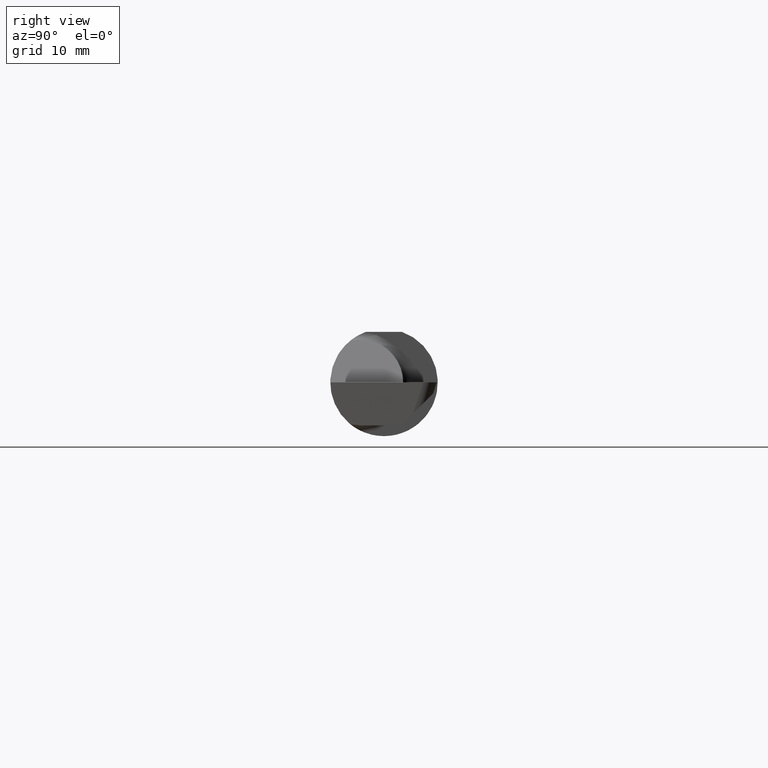
[diagram: clean part render]
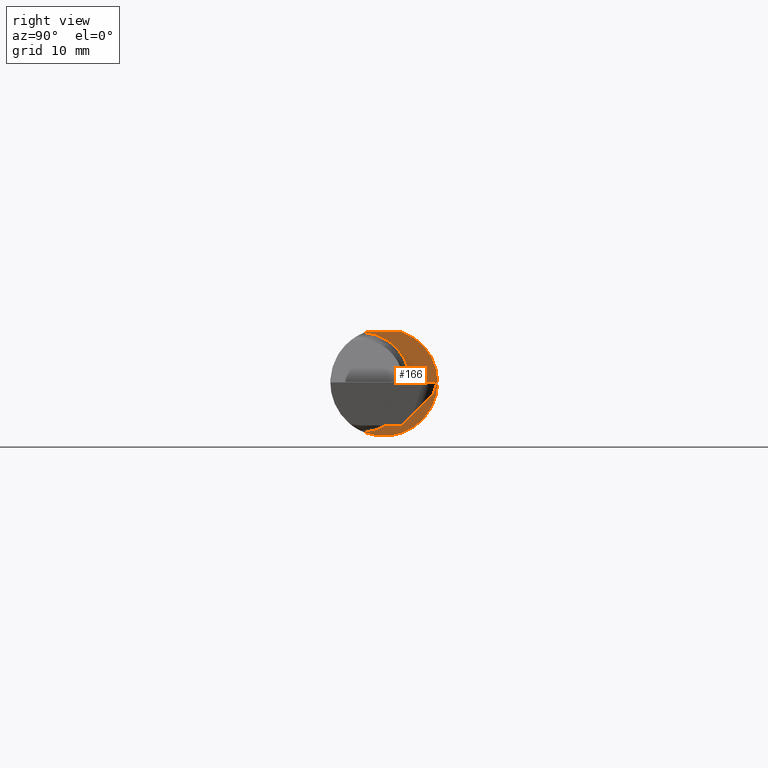
[diagram: same view with one face highlighted and labeled with its STEP entity id]
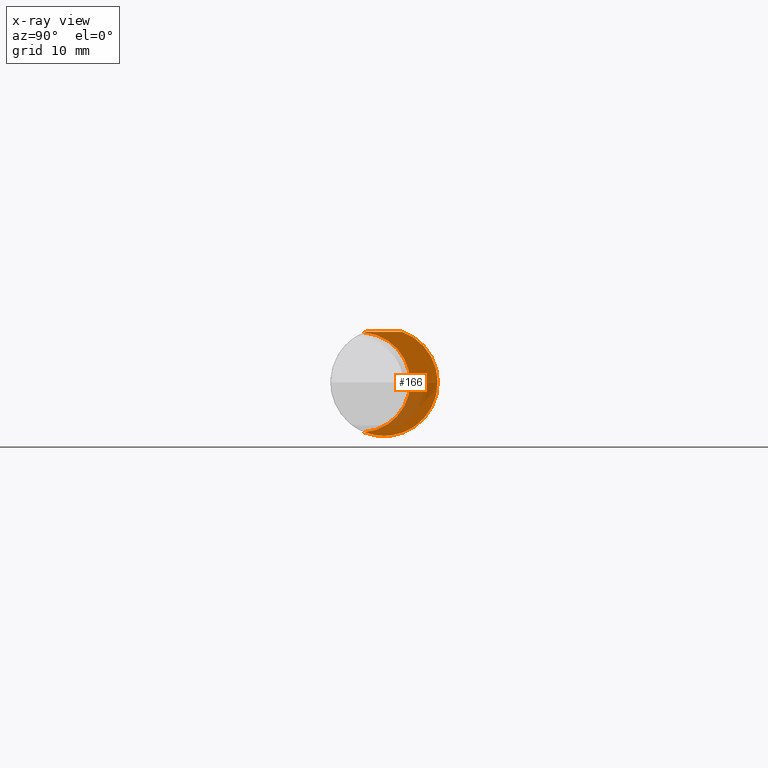
[diagram: x-ray of the same camera — body ghosted, the highlighted face saturated]
A machine part, right view. The second image highlights one B-rep face of the part: STEP entity #166.
The next image is the same camera in x-ray: the body ghosted, the highlighted face saturated — about 28% of this face is hidden behind the body in this view.
In plain terms, the highlighted planar face has unit normal (1, 0, 0).
Its self-contained STEP definition (entity closure, byte-faithful):
#3 = CARTESIAN_POINT ( 'NONE',  ( 2.075000000000000178, 0.000000000000000000, 0.000000000000000000 ) ) ;
#24 = CARTESIAN_POINT ( 'NONE',  ( 2.075000000000000178, 0.1873499999999999055, 0.000000000000000000 ) ) ;
#31 = CARTESIAN_POINT ( 'NONE',  ( 2.075000000000000178, -0.06851976604679065053, -0.1743704796142198643 ) ) ;
#53 = ORIENTED_EDGE ( 'NONE', *, *, #465, .T. ) ;
#81 = AXIS2_PLACEMENT_3D ( 'NONE', #3, #348, #301 ) ;
#116 = CARTESIAN_POINT ( 'NONE',  ( 2.075000000000000178, 0.000000000000000000, 0.000000000000000000 ) ) ;
#136 = ORIENTED_EDGE ( 'NONE', *, *, #144, .T. ) ;
#144 = EDGE_CURVE ( 'NONE', #157, #246, #382, .T. ) ;
#157 = VERTEX_POINT ( 'NONE', #327 ) ;
#166 = ADVANCED_FACE ( 'NONE', ( #184 ), #627, .T. ) ;
#184 = FACE_OUTER_BOUND ( 'NONE', #267, .T. ) ;
#189 = VERTEX_POINT ( 'NONE', #242 ) ;
#210 = VERTEX_POINT ( 'NONE', #570 ) ;
#223 = AXIS2_PLACEMENT_3D ( 'NONE', #116, #500, #670 ) ;
#234 = AXIS2_PLACEMENT_3D ( 'NONE', #385, #437, #605 ) ;
#242 = CARTESIAN_POINT ( 'NONE',  ( 2.075000000000000178, -0.06325108694718283020, 0.1763499999999999235 ) ) ;
#246 = VERTEX_POINT ( 'NONE', #31 ) ;
#267 = EDGE_LOOP ( 'NONE', ( #53, #344, #425, #136 ) ) ;
#273 = EDGE_CURVE ( 'NONE', #189, #210, #282, .T. ) ;
#278 = CIRCLE ( 'NONE', #81, 0.1873499999999999888 ) ;
#282 = LINE ( 'NONE', #501, #336 ) ;
#301 = DIRECTION ( 'NONE',  ( 0.000000000000000000, 1.000000000000000000, 0.000000000000000000 ) ) ;
#327 = CARTESIAN_POINT ( 'NONE',  ( 2.075000000000000178, -0.06851976604679065053, 0.1743704796142198643 ) ) ;
#336 = VECTOR ( 'NONE', #446, 39.37007874015748143 ) ;
#344 = ORIENTED_EDGE ( 'NONE', *, *, #273, .F. ) ;
#348 = DIRECTION ( 'NONE',  ( 1.000000000000000000, 5.069406624455083742E-17, 0.000000000000000000 ) ) ;
#382 = CIRCLE ( 'NONE', #234, 0.1749999999999999889 ) ;
#385 = CARTESIAN_POINT ( 'NONE',  ( 2.075000000000000178, -0.08334999999999999354, 0.000000000000000000 ) ) ;
#399 = DIRECTION ( 'NONE',  ( 1.000000000000000000, 5.069406624455083742E-17, 0.000000000000000000 ) ) ;
#425 = ORIENTED_EDGE ( 'NONE', *, *, #561, .T. ) ;
#437 = DIRECTION ( 'NONE',  ( -1.000000000000000000, -5.069406624455083742E-17, -0.000000000000000000 ) ) ;
#446 = DIRECTION ( 'NONE',  ( -5.069406624455083742E-17, 1.000000000000000000, 0.000000000000000000 ) ) ;
#465 = EDGE_CURVE ( 'NONE', #246, #210, #663, .T. ) ;
#500 = DIRECTION ( 'NONE',  ( 1.000000000000000000, 5.069406624455083742E-17, 0.000000000000000000 ) ) ;
#501 = CARTESIAN_POINT ( 'NONE',  ( 2.075000000000000178, 0.1873499999999998222, 0.1763499999999999235 ) ) ;
#561 = EDGE_CURVE ( 'NONE', #189, #157, #278, .T. ) ;
#570 = CARTESIAN_POINT ( 'NONE',  ( 2.075000000000000178, 0.06325108694718235836, 0.1763499999999999235 ) ) ;
#605 = DIRECTION ( 'NONE',  ( 0.000000000000000000, -1.000000000000000000, 0.000000000000000000 ) ) ;
#616 = DIRECTION ( 'NONE',  ( -5.069406624455083742E-17, 1.000000000000000000, 0.000000000000000000 ) ) ;
#627 = PLANE ( 'NONE',  #640 ) ;
#640 = AXIS2_PLACEMENT_3D ( 'NONE', #24, #399, #616 ) ;
#663 = CIRCLE ( 'NONE', #223, 0.1873499999999999888 ) ;
#670 = DIRECTION ( 'NONE',  ( 0.000000000000000000, 1.000000000000000000, 0.000000000000000000 ) ) ;